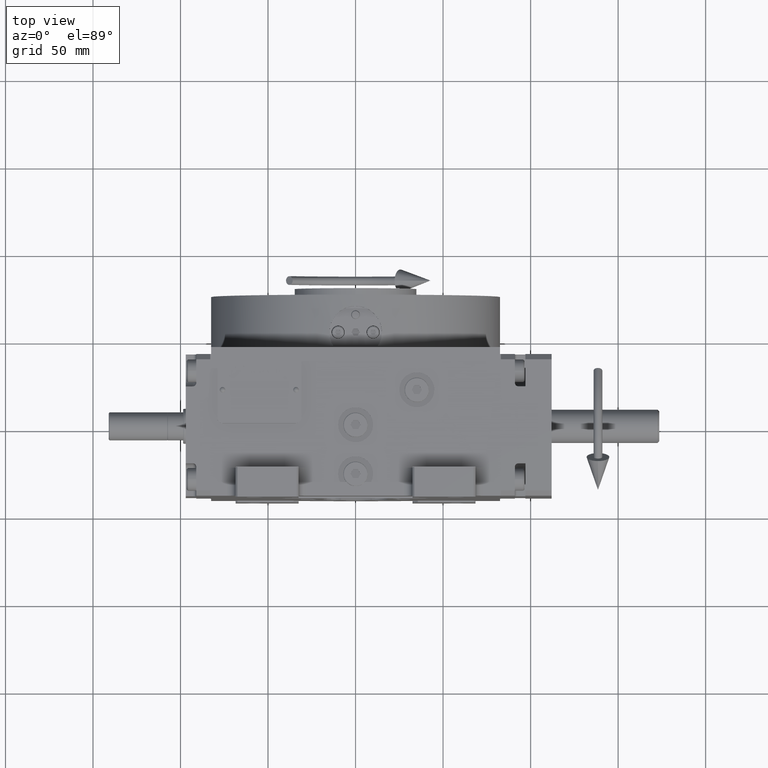
[diagram: clean part render]
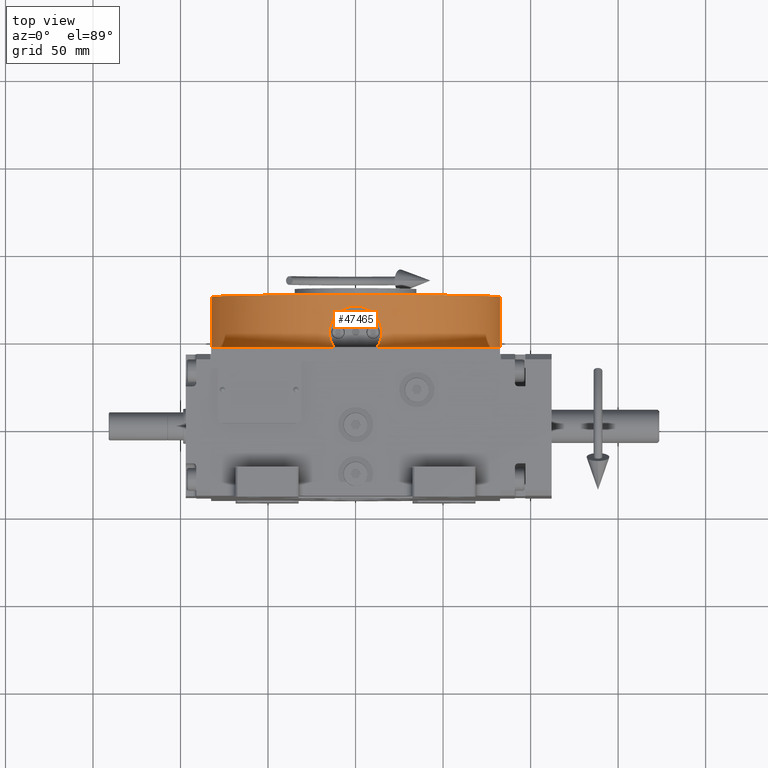
[diagram: same view with one face highlighted and labeled with its STEP entity id]
A machine part, top view. The second image highlights one B-rep face of the part: STEP entity #47465.
In plain terms, the highlighted cylindrical surface (partial cylindrical patch) has radius 82.5 mm, axis along (0, 1, 0).
Its self-contained STEP definition (entity closure, byte-faithful):
#493 = CARTESIAN_POINT ( 'NONE',  ( 8.730210659104772120, -82.03781768206627589, 21.20768323055676063 ) ) ;
#786 = EDGE_CURVE ( 'NONE', #64721, #21256, #40168, .T. ) ;
#1877 = CARTESIAN_POINT ( 'NONE',  ( -12.24319486889437414, -81.58685311677562879, 0.3242598251943211718 ) ) ;
#1915 = CARTESIAN_POINT ( 'NONE',  ( 1.946678680942775408, -82.47845885749219974, 23.88111003742973182 ) ) ;
#2455 = CARTESIAN_POINT ( 'NONE',  ( -82.50000000000001421, 2.020633851199993078E-14, 0.000000000000000000 ) ) ;
#2634 = DIRECTION ( 'NONE',  ( 0.000000000000000000, 0.000000000000000000, 1.000000000000000000 ) ) ;
#2943 = CARTESIAN_POINT ( 'NONE',  ( -14.74242422404743813, -81.17373584456728963, 5.798881419567308626 ) ) ;
#4850 = CARTESIAN_POINT ( 'NONE',  ( -13.02860497951152574, -81.46662816327996381, 16.49865198838897484 ) ) ;
#5414 = EDGE_LOOP ( 'NONE', ( #71913, #12781, #41622, #19322, #20290, #15381, #17227, #36811 ) ) ;
#5449 = CARTESIAN_POINT ( 'NONE',  ( 0.000000000000000000, 0.000000000000000000, 30.49999999999999289 ) ) ;
#5673 = CARTESIAN_POINT ( 'NONE',  ( -82.50000000000001421, 2.020633851199993078E-14, 30.49999999999999289 ) ) ;
#5946 = CARTESIAN_POINT ( 'NONE',  ( 14.05486030038500900, -81.29419948058227874, 14.26331805387535923 ) ) ;
#6322 = CARTESIAN_POINT ( 'NONE',  ( 4.812155808953960445, -82.36454601314801494, 23.24101326873693196 ) ) ;
#7010 = CARTESIAN_POINT ( 'NONE',  ( 2.431423179542332669, -82.46555639784538982, 23.80969995749037338 ) ) ;
#7379 = CARTESIAN_POINT ( 'NONE',  ( 0.9757833380981876248, -82.49565794798510865, 23.97620529776547116 ) ) ;
#7693 = CARTESIAN_POINT ( 'NONE',  ( -12.47259339607201056, -81.55202047700251455, 0.6574111697099772611 ) ) ;
#8694 = CYLINDRICAL_SURFACE ( 'NONE', #31803, 82.50000000000000000 ) ;
#10699 = CARTESIAN_POINT ( 'NONE',  ( -8.729544479475640273, -82.03788872213942795, 21.20816065199864298 ) ) ;
#11490 = B_SPLINE_CURVE_WITH_KNOTS ( 'NONE', 3,
 ( #32730, #66845, #20981, #43357, #37855, #26847, #55814, #49194, #71604, #21368, #4850, #44107, #66483, #16192, #38576, #60976, #10699, #50306, #67228, #16936, #39666, #34189, #56177, #35245, #51376, #23903, #67577, #39316, #7379, #1915, #7010, #33821, #6322, #29393, #28685, #493, #17298, #23524, #46255, #62068, #34551, #22826, #18379, #5946, #52105, #45188, #68647, #23171, #45895, #28326, #51746, #40749 ),
 .UNSPECIFIED., .F., .F.,
 ( 4, 2, 2, 2, 2, 2, 2, 2, 2, 2, 2, 2, 2, 2, 2, 2, 2, 2, 2, 2, 2, 2, 2, 2, 2, 4 ),
 ( 0.1454211916502409219, 0.1675750447099730867, 0.1897288977697052237, 0.2118827508294373885, 0.2340366038891695255, 0.2783443100086339106, 0.3226520161280983512, 0.3448058691878305160, 0.3669597222475627918, 0.3891135753072950121, 0.4112674283670272324, 0.4555751344864917840, 0.4777289875462240598, 0.4998828406059562801, 0.5220366936656886114, 0.5441905467254208872, 0.5884982528448854389, 0.6328059589643499905, 0.6549598120240823773, 0.6771136650838146531, 0.7214213712032793158, 0.7657290773227439784, 0.7878829303824763652, 0.8100367834422087521, 0.8321906365019411389, 0.8543444895616735257 ),
 .UNSPECIFIED. ) ;
#11827 = EDGE_CURVE ( 'NONE', #34424, #69755, #57375, .T. ) ;
#12781 = ORIENTED_EDGE ( 'NONE', *, *, #20483, .T. ) ;
#12834 = CARTESIAN_POINT ( 'NONE',  ( -12.00000000000000000, -81.62260716247999426, 0.000000000000000000 ) ) ;
#15097 = CARTESIAN_POINT ( 'NONE',  ( 15.00017790217110836, -81.12487080390822314, 7.399368257337098242 ) ) ;
#15381 = ORIENTED_EDGE ( 'NONE', *, *, #39862, .T. ) ;
#16048 = DIRECTION ( 'NONE',  ( 0.000000000000000000, 0.000000000000000000, 1.000000000000000000 ) ) ;
#16192 = CARTESIAN_POINT ( 'NONE',  ( -10.25790594505797237, -81.86054721232861198, 19.95533894909772954 ) ) ;
#16193 = CARTESIAN_POINT ( 'NONE',  ( 14.99998170468830949, -81.12496520513606413, 8.999999993001440046 ) ) ;
#16659 = EDGE_CURVE ( 'NONE', #35101, #65627, #46927, .T. ) ;
#16936 = CARTESIAN_POINT ( 'NONE',  ( -6.617142359139878138, -82.23535187233964905, 22.47052742801817615 ) ) ;
#17227 = ORIENTED_EDGE ( 'NONE', *, *, #35450, .T. ) ;
#17298 = CARTESIAN_POINT ( 'NONE',  ( 9.126528520268772482, -81.99454014431202609, 20.91422892542598788 ) ) ;
#17574 = CARTESIAN_POINT ( 'NONE',  ( 82.49999999999998579, -1.010300241903009221E-14, 0.000000000000000000 ) ) ;
#18039 = CARTESIAN_POINT ( 'NONE',  ( 0.000000000000000000, 0.000000000000000000, 0.000000000000000000 ) ) ;
#18379 = CARTESIAN_POINT ( 'NONE',  ( 13.49400507702379315, -81.38983779311415390, 15.62360459987141326 ) ) ;
#19322 = ORIENTED_EDGE ( 'NONE', *, *, #25491, .F. ) ;
#20051 = DIRECTION ( 'NONE',  ( 0.000000000000000000, 0.000000000000000000, 1.000000000000000000 ) ) ;
#20290 = ORIENTED_EDGE ( 'NONE', *, *, #786, .T. ) ;
#20483 = EDGE_CURVE ( 'NONE', #69755, #65627, #24645, .T. ) ;
#20981 = CARTESIAN_POINT ( 'NONE',  ( -14.97611104150528405, -81.12933149880575456, 9.976411005623861072 ) ) ;
#21256 = VERTEX_POINT ( 'NONE', #40618 ) ;
#21368 = CARTESIAN_POINT ( 'NONE',  ( -13.49373063831430919, -81.38988350970689112, 15.62419185199609650 ) ) ;
#21369 = CARTESIAN_POINT ( 'NONE',  ( 13.10652166113867167, -81.45247052056652137, 1.693759511858070832 ) ) ;
#21490 = B_SPLINE_CURVE_WITH_KNOTS ( 'NONE', 3,
 ( #16193, #15097, #38577, #60620, #27224, #21369, #55458, #65036, #49585, #71987 ),
 .UNSPECIFIED., .F., .F.,
 ( 4, 2, 2, 2, 4 ),
 ( 0.8543444895616735257, 0.9271722447808367074, 0.9635861223904182982, 0.9817930611952091491, 1.000000000000000000 ),
 .UNSPECIFIED. ) ;
#22826 = CARTESIAN_POINT ( 'NONE',  ( 13.02891348785843917, -81.46657792094852368, 16.49810643378964770 ) ) ;
#23171 = CARTESIAN_POINT ( 'NONE',  ( 14.81014688631922027, -81.15983520902004500, 11.42877646947460057 ) ) ;
#23524 = CARTESIAN_POINT ( 'NONE',  ( 9.891167989166826047, -81.90581744979145640, 20.28740639923825739 ) ) ;
#23903 = CARTESIAN_POINT ( 'NONE',  ( -0.9749065849585353272, -82.49566829684266622, 23.97626193698611630 ) ) ;
#24494 = CARTESIAN_POINT ( 'NONE',  ( 12.00000000000000000, -81.62260716247999426, 0.000000000000000000 ) ) ;
#24553 = CARTESIAN_POINT ( 'NONE',  ( -13.66693360478552854, -81.36097572575444303, 2.765632748514421202 ) ) ;
#24645 = LINE ( 'NONE', #30499, #52354 ) ;
#25491 = EDGE_CURVE ( 'NONE', #64721, #35101, #55062, .T. ) ;
#25735 = AXIS2_PLACEMENT_3D ( 'NONE', #28222, #37750, #44376 ) ;
#26847 = CARTESIAN_POINT ( 'NONE',  ( -14.62018483521941903, -81.19427011681041506, 12.38958309517191125 ) ) ;
#27224 = CARTESIAN_POINT ( 'NONE',  ( 13.66723119669916819, -81.36092580131199270, 2.766280334785800044 ) ) ;
#28222 = CARTESIAN_POINT ( 'NONE',  ( 0.000000000000000000, 0.000000000000000000, 0.000000000000000000 ) ) ;
#28326 = CARTESIAN_POINT ( 'NONE',  ( 14.97604040435058970, -81.12934452212022052, 9.976003562772230993 ) ) ;
#28685 = CARTESIAN_POINT ( 'NONE',  ( 7.499193382787055384, -82.16259812932356965, 22.02817527205979431 ) ) ;
#29393 = CARTESIAN_POINT ( 'NONE',  ( 6.624688226116246526, -82.23860887313442447, 22.49344792348201594 ) ) ;
#29721 = CARTESIAN_POINT ( 'NONE',  ( -13.98260586172614417, -81.30684380208695927, 3.511029366357954373 ) ) ;
#30499 = CARTESIAN_POINT ( 'NONE',  ( 82.49999999999998579, -1.010322486831990379E-14, 0.000000000000000000 ) ) ;
#31803 = AXIS2_PLACEMENT_3D ( 'NONE', #47898, #20051, #54496 ) ;
#32730 = CARTESIAN_POINT ( 'NONE',  ( -15.00000155215765929, -81.12491227879678490, 8.999999541712211837 ) ) ;
#33821 = CARTESIAN_POINT ( 'NONE',  ( 3.868685143425967254, -82.41481977167674700, 23.52543458421588696 ) ) ;
#34189 = CARTESIAN_POINT ( 'NONE',  ( -4.811342207377684588, -82.36459328412949787, 23.24128728243599440 ) ) ;
#34424 = VERTEX_POINT ( 'NONE', #24494 ) ;
#34551 = CARTESIAN_POINT ( 'NONE',  ( 11.93547449364186264, -81.63394118524294640, 18.13850242473971264 ) ) ;
#35101 = VERTEX_POINT ( 'NONE', #5673 ) ;
#35245 = CARTESIAN_POINT ( 'NONE',  ( -2.430560769728152604, -82.46558182958291638, 23.80984091961616755 ) ) ;
#35450 = EDGE_CURVE ( 'NONE', #47976, #37594, #11490, .T. ) ;
#36811 = ORIENTED_EDGE ( 'NONE', *, *, #52149, .T. ) ;
#36933 = FACE_OUTER_BOUND ( 'NONE', #5414, .T. ) ;
#37594 = VERTEX_POINT ( 'NONE', #71647 ) ;
#37750 = DIRECTION ( 'NONE',  ( 0.000000000000000000, 0.000000000000000000, 1.000000000000000000 ) ) ;
#37855 = CARTESIAN_POINT ( 'NONE',  ( -14.81001008892855353, -81.15986018706161076, 11.42951172787877923 ) ) ;
#38270 = CARTESIAN_POINT ( 'NONE',  ( -15.00000155215765929, -81.12491227879678490, 8.999999541712211837 ) ) ;
#38576 = CARTESIAN_POINT ( 'NONE',  ( -9.890504462964388566, -81.90589755126528360, 20.28798289320899073 ) ) ;
#38577 = CARTESIAN_POINT ( 'NONE',  ( 14.74248490922440880, -81.17372402366743245, 5.799389260054983453 ) ) ;
#39316 = CARTESIAN_POINT ( 'NONE',  ( 0.4888429166140731419, -82.49999735124053757, 23.99998603411285103 ) ) ;
#39666 = CARTESIAN_POINT ( 'NONE',  ( -6.170707242067203779, -82.27015669309764689, 22.68071997146563135 ) ) ;
#39862 = EDGE_CURVE ( 'NONE', #21256, #47976, #48110, .T. ) ;
#40168 = CIRCLE ( 'NONE', #47215, 82.50000000000000000 ) ;
#40618 = CARTESIAN_POINT ( 'NONE',  ( -12.00000000000000000, -81.62260716247999426, 0.000000000000000000 ) ) ;
#40749 = CARTESIAN_POINT ( 'NONE',  ( 14.99998170468830949, -81.12496520513606413, 8.999999993001440046 ) ) ;
#41622 = ORIENTED_EDGE ( 'NONE', *, *, #16659, .F. ) ;
#43357 = CARTESIAN_POINT ( 'NONE',  ( -14.88113668230524134, -81.14680586697889453, 10.94705578319436157 ) ) ;
#44107 = CARTESIAN_POINT ( 'NONE',  ( -11.93490206567074807, -81.63402577779145020, 18.13927526272372148 ) ) ;
#44376 = DIRECTION ( 'NONE',  ( 0.1454545454545079775, -0.9893649353027538229, 0.000000000000000000 ) ) ;
#45188 = CARTESIAN_POINT ( 'NONE',  ( 14.50226475351318811, -81.21548443283947449, 12.86326937730964204 ) ) ;
#45895 = CARTESIAN_POINT ( 'NONE',  ( 14.88111878486925832, -81.14680913315217481, 10.94694900896201339 ) ) ;
#46255 = CARTESIAN_POINT ( 'NONE',  ( 10.25845936648661372, -81.86047786769078982, 19.95481955293025678 ) ) ;
#46927 = CIRCLE ( 'NONE', #50513, 82.50000000000000000 ) ;
#47215 = AXIS2_PLACEMENT_3D ( 'NONE', #18039, #2634, #58356 ) ;
#47465 = ADVANCED_FACE ( 'NONE', ( #36933 ), #8694, .T. ) ;
#47637 = CARTESIAN_POINT ( 'NONE',  ( -15.00012495507364818, -81.12488059373359306, 7.400251699618396017 ) ) ;
#47898 = CARTESIAN_POINT ( 'NONE',  ( 0.000000000000000000, 0.000000000000000000, 0.000000000000000000 ) ) ;
#47976 = VERTEX_POINT ( 'NONE', #38270 ) ;
#48110 = B_SPLINE_CURVE_WITH_KNOTS ( 'NONE', 3,
 ( #12834, #1877, #7693, #52414, #57592, #24553, #29721, #2943, #47637, #52072 ),
 .UNSPECIFIED., .F., .F.,
 ( 4, 2, 2, 2, 4 ),
 ( 0.000000000000000000, 0.01817764895628013258, 0.03635529791256026516, 0.07271059582512048869, 0.1454211916502409219 ),
 .UNSPECIFIED. ) ;
#48836 = CARTESIAN_POINT ( 'NONE',  ( -82.50000000000001421, 1.010322486831990379E-14, 0.000000000000000000 ) ) ;
#49194 = CARTESIAN_POINT ( 'NONE',  ( -14.21939720915072236, -81.26548680187907792, 13.80076203430779636 ) ) ;
#49585 = CARTESIAN_POINT ( 'NONE',  ( 12.24331260194398219, -81.58683580788726886, 0.3244168025936693400 ) ) ;
#50306 = CARTESIAN_POINT ( 'NONE',  ( -7.908806210085963073, -82.12107474416406205, 21.75512952174813819 ) ) ;
#50464 = CARTESIAN_POINT ( 'NONE',  ( 82.49999999999998579, -1.010300241903009221E-14, 30.49999999999999289 ) ) ;
#50513 = AXIS2_PLACEMENT_3D ( 'NONE', #5449, #16048, #50526 ) ;
#50526 = DIRECTION ( 'NONE',  ( -1.000000000000000000, 0.000000000000000000, 0.000000000000000000 ) ) ;
#51376 = CARTESIAN_POINT ( 'NONE',  ( -1.945796341396865525, -82.47847966099942596, 23.88122612831212166 ) ) ;
#51746 = CARTESIAN_POINT ( 'NONE',  ( 14.99989816169959411, -81.12492252780923252, 9.486904479132544310 ) ) ;
#52072 = CARTESIAN_POINT ( 'NONE',  ( -15.00000155215765929, -81.12491227879678490, 8.999999541712211837 ) ) ;
#52105 = CARTESIAN_POINT ( 'NONE',  ( 14.21962999529760197, -81.26544602374748649, 13.80011905861209520 ) ) ;
#52149 = EDGE_CURVE ( 'NONE', #37594, #34424, #21490, .T. ) ;
#52354 = VECTOR ( 'NONE', #58391, 1000.000000000000000 ) ;
#52414 = CARTESIAN_POINT ( 'NONE',  ( -12.90388583830122649, -81.48489037961125803, 1.341496897383961162 ) ) ;
#54496 = DIRECTION ( 'NONE',  ( 1.000000000000000000, 0.000000000000000000, 0.000000000000000000 ) ) ;
#55062 = LINE ( 'NONE', #48836, #56378 ) ;
#55458 = CARTESIAN_POINT ( 'NONE',  ( 12.90417259304091502, -81.48484508862800624, 1.341936808822923100 ) ) ;
#55814 = CARTESIAN_POINT ( 'NONE',  ( -14.50208352788519228, -81.21551683938376698, 12.86383315645771575 ) ) ;
#56177 = CARTESIAN_POINT ( 'NONE',  ( -3.867827837291152537, -82.41486004604385585, 23.52566220404655439 ) ) ;
#56378 = VECTOR ( 'NONE', #60246, 1000.000000000000000 ) ;
#57375 = CIRCLE ( 'NONE', #25735, 82.50000000000001421 ) ;
#57592 = CARTESIAN_POINT ( 'NONE',  ( -13.10624451707161064, -81.45251509904302623, 1.693301029072924457 ) ) ;
#58356 = DIRECTION ( 'NONE',  ( -1.000000000000000000, 0.000000000000000000, 0.000000000000000000 ) ) ;
#58391 = DIRECTION ( 'NONE',  ( 0.000000000000000000, 0.000000000000000000, 1.000000000000000000 ) ) ;
#60246 = DIRECTION ( 'NONE',  ( 0.000000000000000000, 0.000000000000000000, 1.000000000000000000 ) ) ;
#60620 = CARTESIAN_POINT ( 'NONE',  ( 13.98285332921872559, -81.30680104435214162, 3.511842341530857947 ) ) ;
#60976 = CARTESIAN_POINT ( 'NONE',  ( -9.125874858034199733, -81.99461287356496086, 20.91473132629081633 ) ) ;
#62068 = CARTESIAN_POINT ( 'NONE',  ( 11.30536172407987650, -81.72474593102090523, 18.90776664378990901 ) ) ;
#64721 = VERTEX_POINT ( 'NONE', #2455 ) ;
#65036 = CARTESIAN_POINT ( 'NONE',  ( 12.47279196628402254, -81.55199022706000278, 0.6576875248769845639 ) ) ;
#65627 = VERTEX_POINT ( 'NONE', #50464 ) ;
#66483 = CARTESIAN_POINT ( 'NONE',  ( -11.30480490646017699, -81.72482293125531783, 18.90840080558208314 ) ) ;
#66845 = CARTESIAN_POINT ( 'NONE',  ( -14.99996597817484556, -81.12490998857889224, 9.487419267298863090 ) ) ;
#67228 = CARTESIAN_POINT ( 'NONE',  ( -7.484978948461018078, -82.16090774029784427, 22.00829641613369247 ) ) ;
#67577 = CARTESIAN_POINT ( 'NONE',  ( -0.4879484670812267999, -82.50000264633506220, 24.00001391814626928 ) ) ;
#68647 = CARTESIAN_POINT ( 'NONE',  ( 14.62034687227734686, -81.19424092436567264, 12.38900085948214169 ) ) ;
#69755 = VERTEX_POINT ( 'NONE', #17574 ) ;
#71604 = CARTESIAN_POINT ( 'NONE',  ( -14.05465484448405888, -81.29423505555718066, 14.26388389374271348 ) ) ;
#71647 = CARTESIAN_POINT ( 'NONE',  ( 14.99998170468830949, -81.12496520513606413, 8.999999993001440046 ) ) ;
#71913 = ORIENTED_EDGE ( 'NONE', *, *, #11827, .T. ) ;
#71987 = CARTESIAN_POINT ( 'NONE',  ( 12.00000000000000000, -81.62260716247999426, 0.000000000000000000 ) ) ;